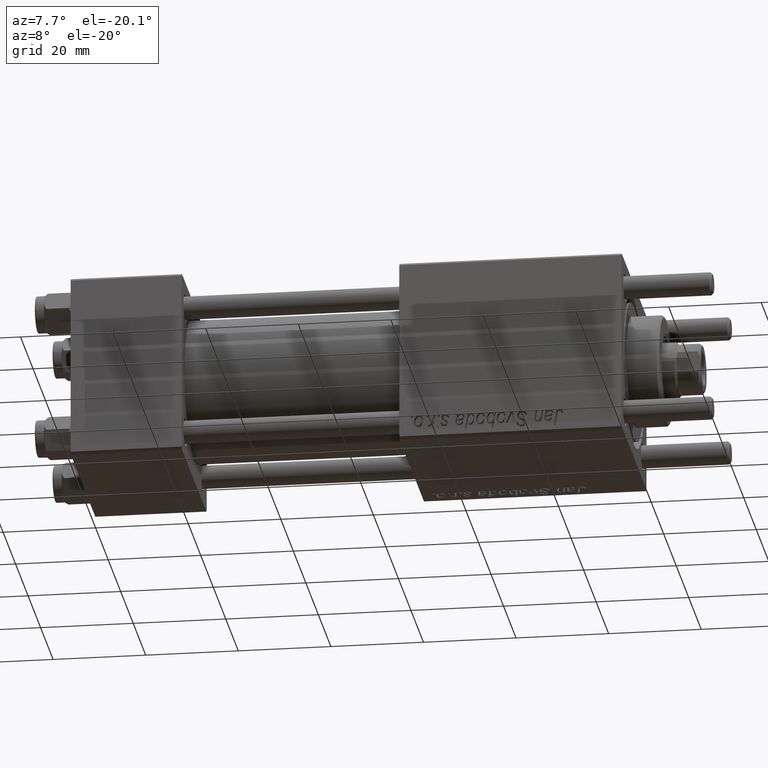
[diagram: clean part render]
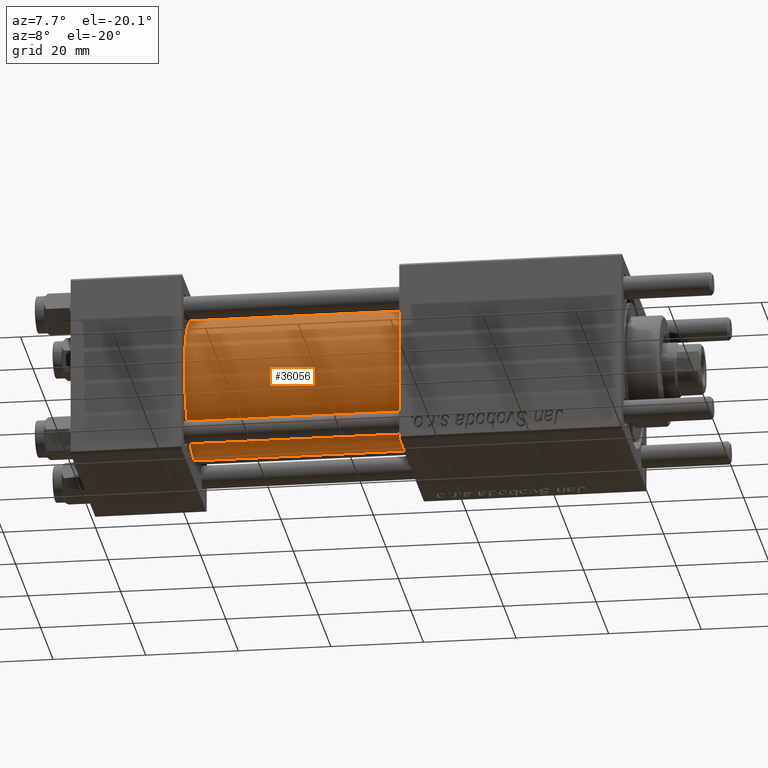
[diagram: same view with one face highlighted and labeled with its STEP entity id]
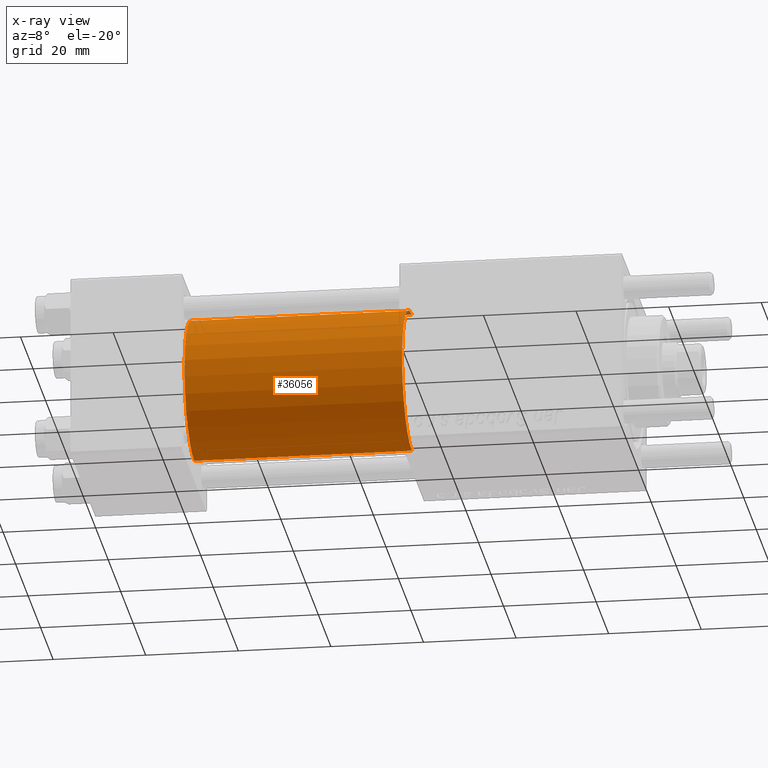
[diagram: x-ray of the same camera — body ghosted, the highlighted face saturated]
A machine part, auxiliary view. The second image highlights one B-rep face of the part: STEP entity #36056.
The next image is the same camera in x-ray: the body ghosted, the highlighted face saturated — about 0% of this face is hidden behind the body in this view.
In plain terms, the highlighted cylindrical surface (partial cylindrical patch) has radius 15.5 mm, axis along (-1, -0, -0).
Its self-contained STEP definition (entity closure, byte-faithful):
#1092 = FACE_OUTER_BOUND ( 'NONE', #42221, .T. ) ;
#4188 = CARTESIAN_POINT ( 'NONE',  ( 71.00000000000001421, -2.602085213965210642E-15, 15.50000000000000000 ) ) ;
#4667 = EDGE_CURVE ( 'NONE', #25507, #23378, #12222, .T. ) ;
#4683 = VECTOR ( 'NONE', #38874, 1000.000000000000000 ) ;
#9798 = ORIENTED_EDGE ( 'NONE', *, *, #21737, .T. ) ;
#11169 = CARTESIAN_POINT ( 'NONE',  ( 71.00000000000001421, -7.038826752868131828E-16, -15.50000000000000000 ) ) ;
#11993 = DIRECTION ( 'NONE',  ( 0.000000000000000000, 0.000000000000000000, 1.000000000000000000 ) ) ;
#12222 = LINE ( 'NONE', #4188, #4683 ) ;
#12694 = CARTESIAN_POINT ( 'NONE',  ( 71.00000000000001421, -2.602085213965210642E-15, 0.000000000000000000 ) ) ;
#14001 = DIRECTION ( 'NONE',  ( 0.000000000000000000, 0.000000000000000000, 1.000000000000000000 ) ) ;
#16473 = EDGE_CURVE ( 'NONE', #25507, #43807, #49500, .T. ) ;
#17142 = DIRECTION ( 'NONE',  ( 1.000000000000000000, 0.000000000000000000, 0.000000000000000000 ) ) ;
#18605 = CARTESIAN_POINT ( 'NONE',  ( 24.00000000000000000, -7.038826752868131828E-16, -15.50000000000000000 ) ) ;
#18670 = ORIENTED_EDGE ( 'NONE', *, *, #16473, .F. ) ;
#18894 = CARTESIAN_POINT ( 'NONE',  ( 24.00000000000000000, -2.602085213965210642E-15, 15.50000000000000000 ) ) ;
#21028 = DIRECTION ( 'NONE',  ( 1.000000000000000000, 0.000000000000000000, 0.000000000000000000 ) ) ;
#21089 = AXIS2_PLACEMENT_3D ( 'NONE', #12694, #21028, #55455 ) ;
#21656 = ORIENTED_EDGE ( 'NONE', *, *, #41272, .F. ) ;
#21737 = EDGE_CURVE ( 'NONE', #23378, #49568, #45047, .T. ) ;
#22790 = ORIENTED_EDGE ( 'NONE', *, *, #4667, .T. ) ;
#22889 = CYLINDRICAL_SURFACE ( 'NONE', #51782, 15.50000000000000000 ) ;
#23378 = VERTEX_POINT ( 'NONE', #18894 ) ;
#25304 = CARTESIAN_POINT ( 'NONE',  ( 71.00000000000001421, -7.038826752868131828E-16, -15.50000000000000000 ) ) ;
#25507 = VERTEX_POINT ( 'NONE', #47781 ) ;
#27634 = AXIS2_PLACEMENT_3D ( 'NONE', #38922, #17142, #11993 ) ;
#36056 = ADVANCED_FACE ( 'NONE', ( #1092 ), #22889, .T. ) ;
#38874 = DIRECTION ( 'NONE',  ( -1.000000000000000000, -0.000000000000000000, -0.000000000000000000 ) ) ;
#38922 = CARTESIAN_POINT ( 'NONE',  ( 24.00000000000000000, -2.602085213965210642E-15, 0.000000000000000000 ) ) ;
#40089 = DIRECTION ( 'NONE',  ( -1.000000000000000000, -0.000000000000000000, -0.000000000000000000 ) ) ;
#41272 = EDGE_CURVE ( 'NONE', #43807, #49568, #41941, .T. ) ;
#41858 = VECTOR ( 'NONE', #46248, 1000.000000000000000 ) ;
#41941 = LINE ( 'NONE', #25304, #41858 ) ;
#42221 = EDGE_LOOP ( 'NONE', ( #21656, #18670, #22790, #9798 ) ) ;
#43807 = VERTEX_POINT ( 'NONE', #11169 ) ;
#45047 = CIRCLE ( 'NONE', #27634, 15.50000000000000000 ) ;
#46248 = DIRECTION ( 'NONE',  ( -1.000000000000000000, -0.000000000000000000, -0.000000000000000000 ) ) ;
#47781 = CARTESIAN_POINT ( 'NONE',  ( 71.00000000000001421, -2.602085213965210642E-15, 15.50000000000000000 ) ) ;
#49500 = CIRCLE ( 'NONE', #21089, 15.50000000000000000 ) ;
#49568 = VERTEX_POINT ( 'NONE', #18605 ) ;
#51782 = AXIS2_PLACEMENT_3D ( 'NONE', #55972, #40089, #14001 ) ;
#55455 = DIRECTION ( 'NONE',  ( 0.000000000000000000, 0.000000000000000000, -1.000000000000000000 ) ) ;
#55972 = CARTESIAN_POINT ( 'NONE',  ( 71.00000000000001421, -2.602085213965210642E-15, 0.000000000000000000 ) ) ;